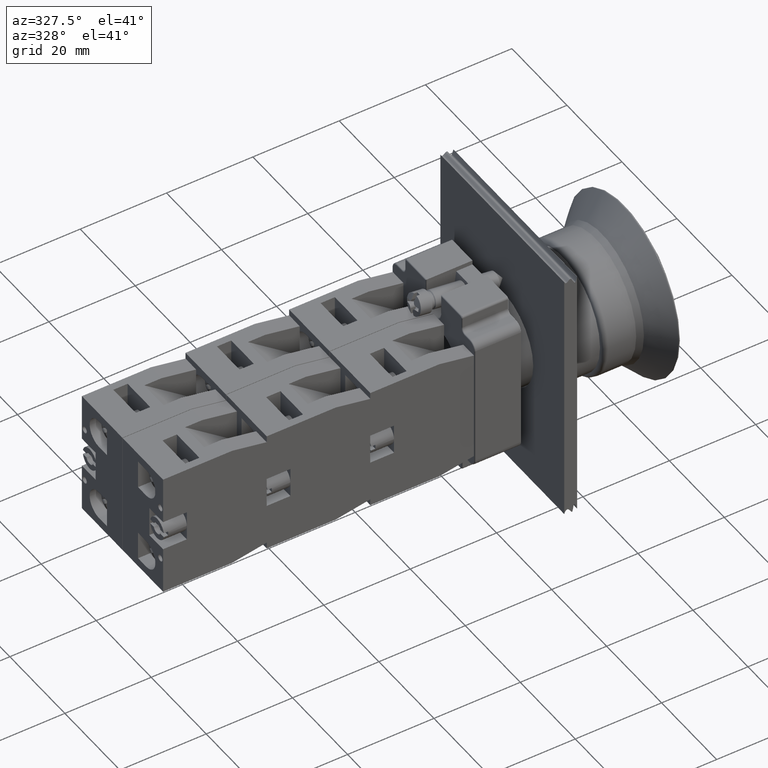
[diagram: clean part render]
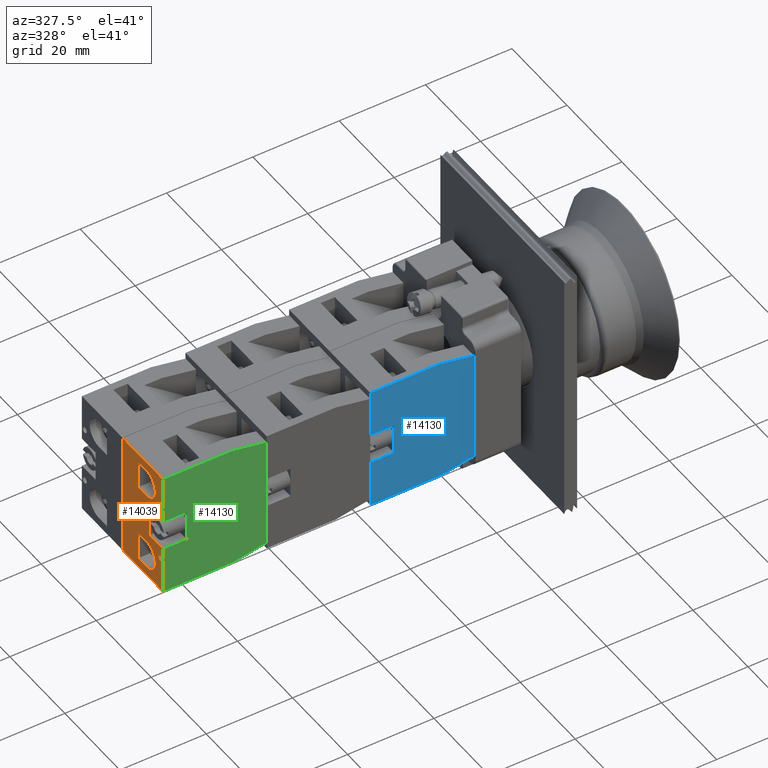
[diagram: same view with three faces highlighted in distinct colors, each labeled with its STEP entity id]
A machine part, auxiliary view with three faces highlighted in distinct colors.
Their STEP definitions:

[orange] entity #14039 — the highlighted planar face has unit normal (-1, -0, 0).
#12441=CARTESIAN_POINT('',(-44.936741828918471,23.797073323279623,14.699999999999999));
#12442=VERTEX_POINT('',#12441);
#12449=CARTESIAN_POINT('',(-44.936741828918471,23.797073323279623,0.0));
#12450=VERTEX_POINT('',#12449);
#12451=CARTESIAN_POINT('',(-44.936741828918471,23.797073323279623,0.0));
#12452=DIRECTION('',(0.0,0.0,1.0));
#12453=VECTOR('',#12452,14.699999999999999);
#12454=LINE('',#12451,#12453);
#12455=EDGE_CURVE('',#12450,#12442,#12454,.T.);
#13424=CARTESIAN_POINT('',(-36.186741828918457,23.797073323279623,13.700000000000001));
#13425=VERTEX_POINT('',#13424);
#13426=CARTESIAN_POINT('',(-36.936741828918457,23.797073323279623,13.700000000000001));
#13427=DIRECTION('',(0.0,-1.0,0.0));
#13428=DIRECTION('',(-1.0,0.0,0.0));
#13429=AXIS2_PLACEMENT_3D('',#13426,#13427,#13428);
#13430=CIRCLE('',#13429,0.750000000000000);
#13431=EDGE_CURVE('',#13425,#13425,#13430,.T.);
#13461=CARTESIAN_POINT('',(-23.186741828918453,23.797073323279626,13.700000000000001));
#13462=VERTEX_POINT('',#13461);
#13463=CARTESIAN_POINT('',(-23.936741828918457,23.797073323279623,13.700000000000001));
#13464=DIRECTION('',(0.0,-1.0,0.0));
#13465=DIRECTION('',(-1.0,0.0,0.0));
#13466=AXIS2_PLACEMENT_3D('',#13463,#13464,#13465);
#13467=CIRCLE('',#13466,0.750000000000000);
#13468=EDGE_CURVE('',#13462,#13462,#13467,.T.);
#13536=CARTESIAN_POINT('',(-24.536741828918480,23.797073323279633,5.600000000000000));
#13537=VERTEX_POINT('',#13536);
#13544=CARTESIAN_POINT('',(-24.536741828918473,23.797073323279633,8.600000000000000));
#13545=VERTEX_POINT('',#13544);
#13546=CARTESIAN_POINT('',(-24.536741828918473,23.797073323279633,8.600000000000000));
#13547=DIRECTION('',(0.0,0.0,-1.0));
#13548=VECTOR('',#13547,3.0);
#13549=LINE('',#13546,#13548);
#13550=EDGE_CURVE('',#13545,#13537,#13549,.T.);
#13567=CARTESIAN_POINT('',(-17.936741828918478,23.797073323279641,5.600000000000000));
#13568=VERTEX_POINT('',#13567);
#13575=CARTESIAN_POINT('',(-24.536741828918480,23.797073323279633,5.600000000000000));
#13576=DIRECTION('',(1.0,0.0,0.0));
#13577=VECTOR('',#13576,6.600000000000001);
#13578=LINE('',#13575,#13577);
#13579=EDGE_CURVE('',#13537,#13568,#13578,.T.);
#13632=CARTESIAN_POINT('',(-36.336741828918470,23.797073323279623,8.600000000000000));
#13633=VERTEX_POINT('',#13632);
#13640=CARTESIAN_POINT('',(-36.336741828918463,23.797073323279623,5.600000000000000));
#13641=VERTEX_POINT('',#13640);
#13642=CARTESIAN_POINT('',(-36.336741828918463,23.797073323279623,5.600000000000000));
#13643=DIRECTION('',(0.0,0.0,1.0));
#13644=VECTOR('',#13643,3.0);
#13645=LINE('',#13642,#13644);
#13646=EDGE_CURVE('',#13641,#13633,#13645,.T.);
#13663=CARTESIAN_POINT('',(-42.936741828918471,23.797073323279623,8.600000000000000));
#13664=VERTEX_POINT('',#13663);
#13671=CARTESIAN_POINT('',(-39.636741828918467,23.797073323279623,8.600000000000000));
#13672=DIRECTION('',(0.0,-1.0,0.0));
#13673=DIRECTION('',(1.0,0.0,0.0));
#13674=AXIS2_PLACEMENT_3D('',#13671,#13672,#13673);
#13675=CIRCLE('',#13674,3.300000000000001);
#13676=EDGE_CURVE('',#13633,#13664,#13675,.T.);
#13688=CARTESIAN_POINT('',(-17.936741828918478,23.797073323279641,8.600000000000000));
#13689=VERTEX_POINT('',#13688);
#13696=CARTESIAN_POINT('',(-17.936741828918478,23.797073323279641,5.600000000000000));
#13697=DIRECTION('',(0.0,0.0,1.0));
#13698=VECTOR('',#13697,3.0);
#13699=LINE('',#13696,#13698);
#13700=EDGE_CURVE('',#13568,#13689,#13699,.T.);
#13734=CARTESIAN_POINT('',(-21.236741828918476,23.797073323279648,8.600000000000000));
#13735=DIRECTION('',(0.0,-1.0,0.0));
#13736=DIRECTION('',(-1.0,0.0,0.0));
#13737=AXIS2_PLACEMENT_3D('',#13734,#13735,#13736);
#13738=CIRCLE('',#13737,3.300000000000001);
#13739=EDGE_CURVE('',#13689,#13545,#13738,.T.);
#13770=CARTESIAN_POINT('',(-42.936741828918471,23.797073323279623,5.600000000000000));
#13771=VERTEX_POINT('',#13770);
#13778=CARTESIAN_POINT('',(-42.936741828918471,23.797073323279623,8.600000000000000));
#13779=DIRECTION('',(0.0,0.0,-1.0));
#13780=VECTOR('',#13779,3.0);
#13781=LINE('',#13778,#13780);
#13782=EDGE_CURVE('',#13664,#13771,#13781,.T.);
#13795=CARTESIAN_POINT('',(-42.936741828918471,23.797073323279623,5.600000000000000));
#13796=DIRECTION('',(1.0,0.0,0.0));
#13797=VECTOR('',#13796,6.600000000000009);
#13798=LINE('',#13795,#13797);
#13799=EDGE_CURVE('',#13771,#13641,#13798,.T.);
#13875=CARTESIAN_POINT('',(-26.936741828918468,23.797073323279626,14.699999999999999));
#13876=VERTEX_POINT('',#13875);
#13883=CARTESIAN_POINT('',(-26.936741828918464,23.797073323279626,9.700000000000001));
#13884=VERTEX_POINT('',#13883);
#13885=CARTESIAN_POINT('',(-26.936741828918464,23.797073323279626,9.700000000000001));
#13886=DIRECTION('',(0.0,0.0,1.0));
#13887=VECTOR('',#13886,4.999999999999998);
#13888=LINE('',#13885,#13887);
#13889=EDGE_CURVE('',#13884,#13876,#13888,.T.);
#13914=CARTESIAN_POINT('',(-33.936741828918464,23.797073323279623,9.700000000000001));
#13915=VERTEX_POINT('',#13914);
#13916=CARTESIAN_POINT('',(-33.936741828918464,23.797073323279623,9.700000000000001));
#13917=DIRECTION('',(1.0,0.0,0.0));
#13918=VECTOR('',#13917,7.0);
#13919=LINE('',#13916,#13918);
#13920=EDGE_CURVE('',#13915,#13884,#13919,.T.);
#13945=CARTESIAN_POINT('',(-33.936741828918464,23.797073323279623,14.699999999999999));
#13946=VERTEX_POINT('',#13945);
#13947=CARTESIAN_POINT('',(-33.936741828918464,23.797073323279623,14.699999999999999));
#13948=DIRECTION('',(0.0,0.0,-1.0));
#13949=VECTOR('',#13948,4.999999999999998);
#13950=LINE('',#13947,#13949);
#13951=EDGE_CURVE('',#13946,#13915,#13950,.T.);
#13982=CARTESIAN_POINT('',(-44.936741828918471,23.797073323279623,0.0));
#13983=DIRECTION('',(0.0,1.0,0.0));
#13984=DIRECTION('',(0.0,0.0,1.0));
#13985=AXIS2_PLACEMENT_3D('',#13982,#13983,#13984);
#13986=PLANE('',#13985);
#13987=ORIENTED_EDGE('',*,*,#13951,.T.);
#13988=ORIENTED_EDGE('',*,*,#13920,.T.);
#13989=ORIENTED_EDGE('',*,*,#13889,.T.);
#13990=CARTESIAN_POINT('',(-15.936741828918466,23.797073323279626,14.699999999999999));
#13991=VERTEX_POINT('',#13990);
#13992=CARTESIAN_POINT('',(-26.936741828918468,23.797073323279626,14.699999999999999));
#13993=DIRECTION('',(1.0,0.0,0.0));
#13994=VECTOR('',#13993,11.000000000000002);
#13995=LINE('',#13992,#13994);
#13996=EDGE_CURVE('',#13876,#13991,#13995,.T.);
#13997=ORIENTED_EDGE('',*,*,#13996,.T.);
#13998=CARTESIAN_POINT('',(-15.936741828918466,23.797073323279626,0.0));
#13999=VERTEX_POINT('',#13998);
#14000=CARTESIAN_POINT('',(-15.936741828918466,23.797073323279626,0.0));
#14001=DIRECTION('',(0.0,0.0,1.0));
#14002=VECTOR('',#14001,14.699999999999999);
#14003=LINE('',#14000,#14002);
#14004=EDGE_CURVE('',#13999,#13991,#14003,.T.);
#14005=ORIENTED_EDGE('',*,*,#14004,.F.);
#14006=CARTESIAN_POINT('',(-44.936741828918471,23.797073323279623,0.0));
#14007=DIRECTION('',(1.0,0.0,0.0));
#14008=VECTOR('',#14007,29.000000000000007);
#14009=LINE('',#14006,#14008);
#14010=EDGE_CURVE('',#12450,#13999,#14009,.T.);
#14011=ORIENTED_EDGE('',*,*,#14010,.F.);
#14012=ORIENTED_EDGE('',*,*,#12455,.T.);
#14013=CARTESIAN_POINT('',(-44.936741828918471,23.797073323279623,14.699999999999999));
#14014=DIRECTION('',(1.0,0.0,0.0));
#14015=VECTOR('',#14014,11.000000000000007);
#14016=LINE('',#14013,#14015);
#14017=EDGE_CURVE('',#12442,#13946,#14016,.T.);
#14018=ORIENTED_EDGE('',*,*,#14017,.T.);
#14019=EDGE_LOOP('',(#13987,#13988,#13989,#13997,#14005,#14011,#14012,#14018));
#14020=FACE_OUTER_BOUND('',#14019,.T.);
#14021=ORIENTED_EDGE('',*,*,#13431,.T.);
#14022=EDGE_LOOP('',(#14021));
#14023=FACE_BOUND('',#14022,.T.);
#14024=ORIENTED_EDGE('',*,*,#13468,.T.);
#14025=EDGE_LOOP('',(#14024));
#14026=FACE_BOUND('',#14025,.T.);
#14027=ORIENTED_EDGE('',*,*,#13700,.T.);
#14028=ORIENTED_EDGE('',*,*,#13739,.T.);
#14029=ORIENTED_EDGE('',*,*,#13550,.T.);
#14030=ORIENTED_EDGE('',*,*,#13579,.T.);
#14031=EDGE_LOOP('',(#14027,#14028,#14029,#14030));
#14032=FACE_BOUND('',#14031,.T.);
#14033=ORIENTED_EDGE('',*,*,#13782,.T.);
#14034=ORIENTED_EDGE('',*,*,#13799,.T.);
#14035=ORIENTED_EDGE('',*,*,#13646,.T.);
#14036=ORIENTED_EDGE('',*,*,#13676,.T.);
#14037=EDGE_LOOP('',(#14033,#14034,#14035,#14036));
#14038=FACE_BOUND('',#14037,.T.);
#14039=ADVANCED_FACE('',(#14020,#14023,#14026,#14032,#14038),#13986,.T.);

[blue] entity #14130 — the highlighted planar face has unit normal (0, -1, -0).
#12433=CARTESIAN_POINT('',(-44.936741828918457,7.797073323279626,14.699999999999999));
#12434=VERTEX_POINT('',#12433);
#12441=CARTESIAN_POINT('',(-44.936741828918471,23.797073323279623,14.699999999999999));
#12442=VERTEX_POINT('',#12441);
#12443=CARTESIAN_POINT('',(-44.936741828918457,7.797073323279626,14.699999999999999));
#12444=DIRECTION('',(0.0,1.0,0.0));
#12445=VECTOR('',#12444,15.999999999999996);
#12446=LINE('',#12443,#12445);
#12447=EDGE_CURVE('',#12434,#12442,#12446,.T.);
#12514=CARTESIAN_POINT('',(-43.436741828918457,-0.202926676720380,14.699999999999999));
#12515=VERTEX_POINT('',#12514);
#12522=CARTESIAN_POINT('',(-43.436741828918457,-0.202926676720380,14.699999999999999));
#12523=DIRECTION('',(-0.184288535050185,0.982872186934322,0.0));
#12524=VECTOR('',#12523,8.139410298049860);
#12525=LINE('',#12522,#12524);
#12526=EDGE_CURVE('',#12515,#12434,#12525,.T.);
#12665=CARTESIAN_POINT('',(-17.436741828918457,-0.202926676720377,14.699999999999999));
#12666=VERTEX_POINT('',#12665);
#12673=CARTESIAN_POINT('',(-17.436741828918457,-0.202926676720377,14.699999999999999));
#12674=DIRECTION('',(-1.0,0.0,0.0));
#12675=VECTOR('',#12674,26.0);
#12676=LINE('',#12673,#12675);
#12677=EDGE_CURVE('',#12666,#12515,#12676,.T.);
#12758=CARTESIAN_POINT('',(-15.936741828918466,7.797073323279626,14.699999999999999));
#12759=VERTEX_POINT('',#12758);
#12766=CARTESIAN_POINT('',(-15.936741828918466,7.797073323279626,14.699999999999999));
#12767=DIRECTION('',(-0.184288535050184,-0.982872186934322,0.0));
#12768=VECTOR('',#12767,8.139410298049855);
#12769=LINE('',#12766,#12768);
#12770=EDGE_CURVE('',#12759,#12666,#12769,.T.);
#13865=CARTESIAN_POINT('',(-26.936741828918468,18.297073323279626,14.699999999999999));
#13866=VERTEX_POINT('',#13865);
#13875=CARTESIAN_POINT('',(-26.936741828918468,23.797073323279626,14.699999999999999));
#13876=VERTEX_POINT('',#13875);
#13877=CARTESIAN_POINT('',(-26.936741828918468,23.797073323279626,14.699999999999999));
#13878=DIRECTION('',(0.0,-1.0,0.0));
#13879=VECTOR('',#13878,5.500000000000000);
#13880=LINE('',#13877,#13879);
#13881=EDGE_CURVE('',#13876,#13866,#13880,.T.);
#13936=CARTESIAN_POINT('',(-33.936741828918464,18.297073323279619,14.699999999999999));
#13937=VERTEX_POINT('',#13936);
#13945=CARTESIAN_POINT('',(-33.936741828918464,23.797073323279623,14.699999999999999));
#13946=VERTEX_POINT('',#13945);
#13953=CARTESIAN_POINT('',(-33.936741828918464,18.297073323279619,14.699999999999999));
#13954=DIRECTION('',(0.0,1.0,0.0));
#13955=VECTOR('',#13954,5.500000000000004);
#13956=LINE('',#13953,#13955);
#13957=EDGE_CURVE('',#13937,#13946,#13956,.T.);
#13970=CARTESIAN_POINT('',(-26.936741828918468,18.297073323279626,14.699999999999999));
#13971=DIRECTION('',(-1.0,0.0,0.0));
#13972=VECTOR('',#13971,6.999999999999996);
#13973=LINE('',#13970,#13972);
#13974=EDGE_CURVE('',#13866,#13937,#13973,.T.);
#13990=CARTESIAN_POINT('',(-15.936741828918466,23.797073323279626,14.699999999999999));
#13991=VERTEX_POINT('',#13990);
#13992=CARTESIAN_POINT('',(-26.936741828918468,23.797073323279626,14.699999999999999));
#13993=DIRECTION('',(1.0,0.0,0.0));
#13994=VECTOR('',#13993,11.000000000000002);
#13995=LINE('',#13992,#13994);
#13996=EDGE_CURVE('',#13876,#13991,#13995,.T.);
#14013=CARTESIAN_POINT('',(-44.936741828918471,23.797073323279623,14.699999999999999));
#14014=DIRECTION('',(1.0,0.0,0.0));
#14015=VECTOR('',#14014,11.000000000000007);
#14016=LINE('',#14013,#14015);
#14017=EDGE_CURVE('',#12442,#13946,#14016,.T.);
#14061=CARTESIAN_POINT('',(-15.936741828918466,23.797073323279626,14.699999999999999));
#14062=DIRECTION('',(0.0,-1.0,0.0));
#14063=VECTOR('',#14062,16.0);
#14064=LINE('',#14061,#14063);
#14065=EDGE_CURVE('',#13991,#12759,#14064,.T.);
#14113=CARTESIAN_POINT('',(-30.436741828918457,12.124046801833057,14.699999999999999));
#14114=DIRECTION('',(0.0,0.0,1.0));
#14115=DIRECTION('',(1.0,0.0,0.0));
#14116=AXIS2_PLACEMENT_3D('',#14113,#14114,#14115);
#14117=PLANE('',#14116);
#14118=ORIENTED_EDGE('',*,*,#13957,.T.);
#14119=ORIENTED_EDGE('',*,*,#14017,.F.);
#14120=ORIENTED_EDGE('',*,*,#12447,.F.);
#14121=ORIENTED_EDGE('',*,*,#12526,.F.);
#14122=ORIENTED_EDGE('',*,*,#12677,.F.);
#14123=ORIENTED_EDGE('',*,*,#12770,.F.);
#14124=ORIENTED_EDGE('',*,*,#14065,.F.);
#14125=ORIENTED_EDGE('',*,*,#13996,.F.);
#14126=ORIENTED_EDGE('',*,*,#13881,.T.);
#14127=ORIENTED_EDGE('',*,*,#13974,.T.);
#14128=EDGE_LOOP('',(#14118,#14119,#14120,#14121,#14122,#14123,#14124,#14125,#14126,#14127));
#14129=FACE_OUTER_BOUND('',#14128,.T.);
#14130=ADVANCED_FACE('',(#14129),#14117,.T.);

[green] entity #14130 — the highlighted planar face has unit normal (0, -1, -0).
#12433=CARTESIAN_POINT('',(-44.936741828918457,7.797073323279626,14.699999999999999));
#12434=VERTEX_POINT('',#12433);
#12441=CARTESIAN_POINT('',(-44.936741828918471,23.797073323279623,14.699999999999999));
#12442=VERTEX_POINT('',#12441);
#12443=CARTESIAN_POINT('',(-44.936741828918457,7.797073323279626,14.699999999999999));
#12444=DIRECTION('',(0.0,1.0,0.0));
#12445=VECTOR('',#12444,15.999999999999996);
#12446=LINE('',#12443,#12445);
#12447=EDGE_CURVE('',#12434,#12442,#12446,.T.);
#12514=CARTESIAN_POINT('',(-43.436741828918457,-0.202926676720380,14.699999999999999));
#12515=VERTEX_POINT('',#12514);
#12522=CARTESIAN_POINT('',(-43.436741828918457,-0.202926676720380,14.699999999999999));
#12523=DIRECTION('',(-0.184288535050185,0.982872186934322,0.0));
#12524=VECTOR('',#12523,8.139410298049860);
#12525=LINE('',#12522,#12524);
#12526=EDGE_CURVE('',#12515,#12434,#12525,.T.);
#12665=CARTESIAN_POINT('',(-17.436741828918457,-0.202926676720377,14.699999999999999));
#12666=VERTEX_POINT('',#12665);
#12673=CARTESIAN_POINT('',(-17.436741828918457,-0.202926676720377,14.699999999999999));
#12674=DIRECTION('',(-1.0,0.0,0.0));
#12675=VECTOR('',#12674,26.0);
#12676=LINE('',#12673,#12675);
#12677=EDGE_CURVE('',#12666,#12515,#12676,.T.);
#12758=CARTESIAN_POINT('',(-15.936741828918466,7.797073323279626,14.699999999999999));
#12759=VERTEX_POINT('',#12758);
#12766=CARTESIAN_POINT('',(-15.936741828918466,7.797073323279626,14.699999999999999));
#12767=DIRECTION('',(-0.184288535050184,-0.982872186934322,0.0));
#12768=VECTOR('',#12767,8.139410298049855);
#12769=LINE('',#12766,#12768);
#12770=EDGE_CURVE('',#12759,#12666,#12769,.T.);
#13865=CARTESIAN_POINT('',(-26.936741828918468,18.297073323279626,14.699999999999999));
#13866=VERTEX_POINT('',#13865);
#13875=CARTESIAN_POINT('',(-26.936741828918468,23.797073323279626,14.699999999999999));
#13876=VERTEX_POINT('',#13875);
#13877=CARTESIAN_POINT('',(-26.936741828918468,23.797073323279626,14.699999999999999));
#13878=DIRECTION('',(0.0,-1.0,0.0));
#13879=VECTOR('',#13878,5.500000000000000);
#13880=LINE('',#13877,#13879);
#13881=EDGE_CURVE('',#13876,#13866,#13880,.T.);
#13936=CARTESIAN_POINT('',(-33.936741828918464,18.297073323279619,14.699999999999999));
#13937=VERTEX_POINT('',#13936);
#13945=CARTESIAN_POINT('',(-33.936741828918464,23.797073323279623,14.699999999999999));
#13946=VERTEX_POINT('',#13945);
#13953=CARTESIAN_POINT('',(-33.936741828918464,18.297073323279619,14.699999999999999));
#13954=DIRECTION('',(0.0,1.0,0.0));
#13955=VECTOR('',#13954,5.500000000000004);
#13956=LINE('',#13953,#13955);
#13957=EDGE_CURVE('',#13937,#13946,#13956,.T.);
#13970=CARTESIAN_POINT('',(-26.936741828918468,18.297073323279626,14.699999999999999));
#13971=DIRECTION('',(-1.0,0.0,0.0));
#13972=VECTOR('',#13971,6.999999999999996);
#13973=LINE('',#13970,#13972);
#13974=EDGE_CURVE('',#13866,#13937,#13973,.T.);
#13990=CARTESIAN_POINT('',(-15.936741828918466,23.797073323279626,14.699999999999999));
#13991=VERTEX_POINT('',#13990);
#13992=CARTESIAN_POINT('',(-26.936741828918468,23.797073323279626,14.699999999999999));
#13993=DIRECTION('',(1.0,0.0,0.0));
#13994=VECTOR('',#13993,11.000000000000002);
#13995=LINE('',#13992,#13994);
#13996=EDGE_CURVE('',#13876,#13991,#13995,.T.);
#14013=CARTESIAN_POINT('',(-44.936741828918471,23.797073323279623,14.699999999999999));
#14014=DIRECTION('',(1.0,0.0,0.0));
#14015=VECTOR('',#14014,11.000000000000007);
#14016=LINE('',#14013,#14015);
#14017=EDGE_CURVE('',#12442,#13946,#14016,.T.);
#14061=CARTESIAN_POINT('',(-15.936741828918466,23.797073323279626,14.699999999999999));
#14062=DIRECTION('',(0.0,-1.0,0.0));
#14063=VECTOR('',#14062,16.0);
#14064=LINE('',#14061,#14063);
#14065=EDGE_CURVE('',#13991,#12759,#14064,.T.);
#14113=CARTESIAN_POINT('',(-30.436741828918457,12.124046801833057,14.699999999999999));
#14114=DIRECTION('',(0.0,0.0,1.0));
#14115=DIRECTION('',(1.0,0.0,0.0));
#14116=AXIS2_PLACEMENT_3D('',#14113,#14114,#14115);
#14117=PLANE('',#14116);
#14118=ORIENTED_EDGE('',*,*,#13957,.T.);
#14119=ORIENTED_EDGE('',*,*,#14017,.F.);
#14120=ORIENTED_EDGE('',*,*,#12447,.F.);
#14121=ORIENTED_EDGE('',*,*,#12526,.F.);
#14122=ORIENTED_EDGE('',*,*,#12677,.F.);
#14123=ORIENTED_EDGE('',*,*,#12770,.F.);
#14124=ORIENTED_EDGE('',*,*,#14065,.F.);
#14125=ORIENTED_EDGE('',*,*,#13996,.F.);
#14126=ORIENTED_EDGE('',*,*,#13881,.T.);
#14127=ORIENTED_EDGE('',*,*,#13974,.T.);
#14128=EDGE_LOOP('',(#14118,#14119,#14120,#14121,#14122,#14123,#14124,#14125,#14126,#14127));
#14129=FACE_OUTER_BOUND('',#14128,.T.);
#14130=ADVANCED_FACE('',(#14129),#14117,.T.);